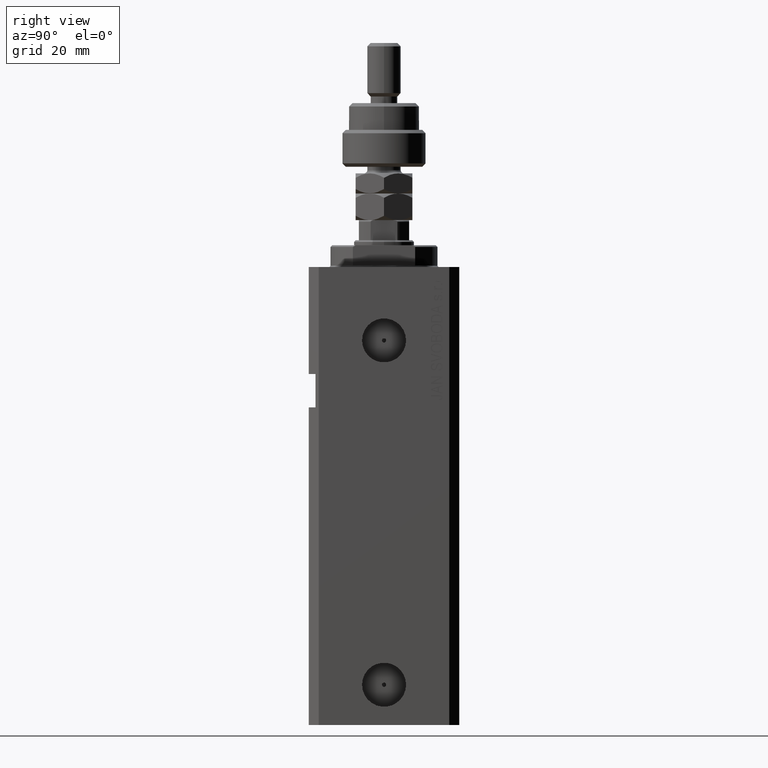
[diagram: clean part render]
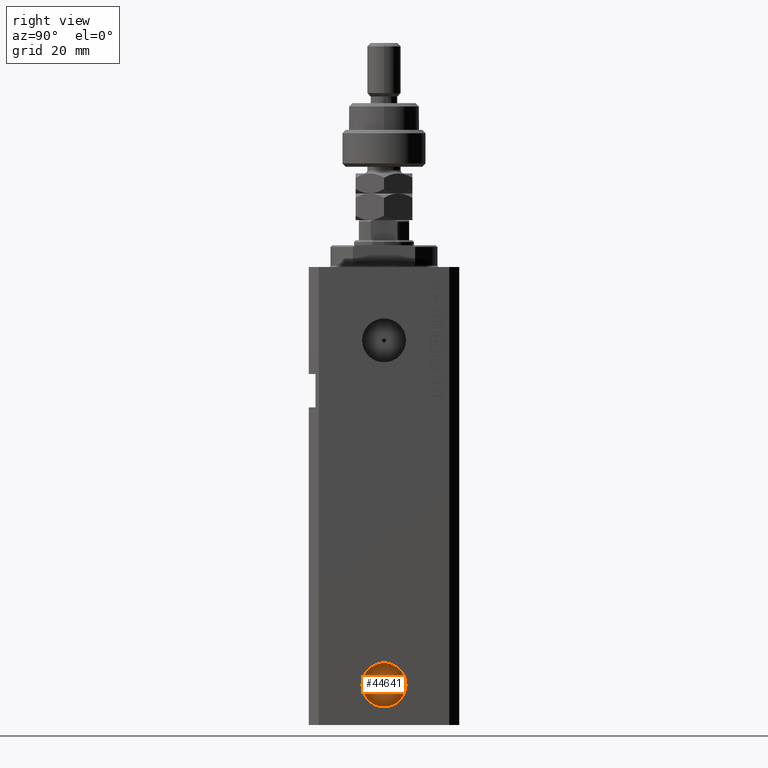
[diagram: same view with one face highlighted and labeled with its STEP entity id]
A machine part, right view. The second image highlights one B-rep face of the part: STEP entity #44641.
In plain terms, the highlighted planar face has unit normal (1, -0, 0).
Its self-contained STEP definition (entity closure, byte-faithful):
#1002 = EDGE_LOOP ( 'NONE', ( #44043, #38925 ) ) ;
#1480 = DIRECTION ( 'NONE',  ( 1.110223024625144708E-14, 1.000000000000000000, 0.000000000000000000 ) ) ;
#2169 = EDGE_CURVE ( 'NONE', #11364, #28092, #4590, .T. ) ;
#3125 = EDGE_LOOP ( 'NONE', ( #23091, #45957 ) ) ;
#3243 = CARTESIAN_POINT ( 'NONE',  ( 19.39999999999668745, -6.580000000000244320, -125.0000000000000000 ) ) ;
#4307 = CIRCLE ( 'NONE', #31613, 6.579999999999985860 ) ;
#4590 = CIRCLE ( 'NONE', #44395, 6.579999999999985860 ) ;
#5363 = DIRECTION ( 'NONE',  ( 1.000000000000000000, -1.334402673828349134E-14, 0.000000000000000000 ) ) ;
#5833 = CIRCLE ( 'NONE', #11275, 0.6250000000000066613 ) ;
#7884 = AXIS2_PLACEMENT_3D ( 'NONE', #42309, #20806, #43037 ) ;
#10086 = CARTESIAN_POINT ( 'NONE',  ( 19.39999999999677982, 0.6249999999997477573, -125.0000000000000000 ) ) ;
#11275 = AXIS2_PLACEMENT_3D ( 'NONE', #20045, #34934, #1480 ) ;
#11364 = VERTEX_POINT ( 'NONE', #3243 ) ;
#12685 = FACE_BOUND ( 'NONE', #1002, .T. ) ;
#14755 = DIRECTION ( 'NONE',  ( 1.000000000000000000, -1.334402673828349134E-14, 0.000000000000000000 ) ) ;
#14867 = AXIS2_PLACEMENT_3D ( 'NONE', #27586, #5363, #20267 ) ;
#15034 = CARTESIAN_POINT ( 'NONE',  ( 19.39999999999676561, -0.6250000000002655653, -125.0000000000000000 ) ) ;
#18396 = EDGE_CURVE ( 'NONE', #20490, #26035, #5833, .T. ) ;
#19974 = EDGE_CURVE ( 'NONE', #28092, #11364, #4307, .T. ) ;
#20045 = CARTESIAN_POINT ( 'NONE',  ( 19.39999999999677271, -2.588741187226567343E-13, -125.0000000000000000 ) ) ;
#20267 = DIRECTION ( 'NONE',  ( 1.334402673828349134E-14, 1.000000000000000000, 0.000000000000000000 ) ) ;
#20490 = VERTEX_POINT ( 'NONE', #15034 ) ;
#20806 = DIRECTION ( 'NONE',  ( 1.000000000000000000, -1.334402673828349134E-14, 0.000000000000000000 ) ) ;
#22336 = CARTESIAN_POINT ( 'NONE',  ( 19.39999999999677271, -2.588741187226567343E-13, -125.0000000000000000 ) ) ;
#23091 = ORIENTED_EDGE ( 'NONE', *, *, #19974, .T. ) ;
#23452 = PLANE ( 'NONE',  #14867 ) ;
#26035 = VERTEX_POINT ( 'NONE', #10086 ) ;
#27586 = CARTESIAN_POINT ( 'NONE',  ( 19.39999999999677271, -2.588741187226567343E-13, -125.0000000000000000 ) ) ;
#28092 = VERTEX_POINT ( 'NONE', #44009 ) ;
#29132 = DIRECTION ( 'NONE',  ( 1.318178933113078171E-14, 1.000000000000000000, 0.000000000000000000 ) ) ;
#31613 = AXIS2_PLACEMENT_3D ( 'NONE', #32085, #46980, #29132 ) ;
#32085 = CARTESIAN_POINT ( 'NONE',  ( 19.39999999999677271, -2.588741187226567343E-13, -125.0000000000000000 ) ) ;
#34674 = FACE_OUTER_BOUND ( 'NONE', #3125, .T. ) ;
#34934 = DIRECTION ( 'NONE',  ( 1.000000000000000000, -1.334402673828349134E-14, 0.000000000000000000 ) ) ;
#36988 = DIRECTION ( 'NONE',  ( 1.318178933113078171E-14, 1.000000000000000000, 0.000000000000000000 ) ) ;
#38327 = CIRCLE ( 'NONE', #7884, 0.6250000000000066613 ) ;
#38925 = ORIENTED_EDGE ( 'NONE', *, *, #18396, .F. ) ;
#42309 = CARTESIAN_POINT ( 'NONE',  ( 19.39999999999677271, -2.588741187226567343E-13, -125.0000000000000000 ) ) ;
#43037 = DIRECTION ( 'NONE',  ( 1.110223024625144708E-14, 1.000000000000000000, 0.000000000000000000 ) ) ;
#44009 = CARTESIAN_POINT ( 'NONE',  ( 19.39999999999686153, 6.579999999999727400, -125.0000000000000000 ) ) ;
#44043 = ORIENTED_EDGE ( 'NONE', *, *, #45240, .F. ) ;
#44395 = AXIS2_PLACEMENT_3D ( 'NONE', #22336, #14755, #36988 ) ;
#44641 = ADVANCED_FACE ( 'NONE', ( #12685, #34674 ), #23452, .T. ) ;
#45240 = EDGE_CURVE ( 'NONE', #26035, #20490, #38327, .T. ) ;
#45957 = ORIENTED_EDGE ( 'NONE', *, *, #2169, .T. ) ;
#46980 = DIRECTION ( 'NONE',  ( 1.000000000000000000, -1.334402673828349134E-14, 0.000000000000000000 ) ) ;